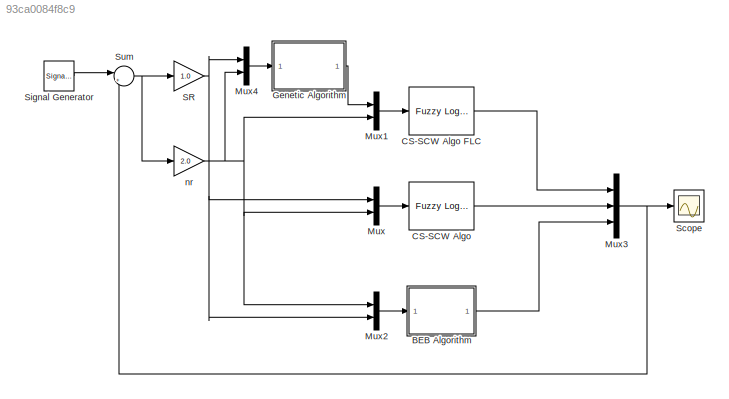
MODEL slx_93ca0084f8c9
KIND model
CONFIG AbsTol = auto
CONFIG FixedStep = auto
CONFIG MaxStep = auto
CONFIG MinStep = auto
CONFIG RelTol = 1e-3
CONFIG SampleTimeConstraint = Unconstrained
CONFIG Solver = ode45
CONFIG SolverMode = SingleTasking
CONFIG SolverName = ode45
CONFIG StartTime = 0.0
CONFIG StopTime = 10.0
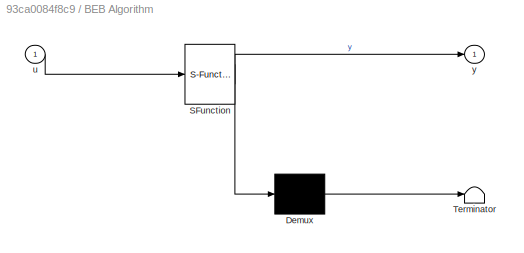
BLOCK [SubSystem] BEB Algorithm
  ErrorFcn = Stateflow.Translate.translate
  PermitHierarchicalResolution = ExplicitOnly
  Ports = [1, 1]
  RequestExecContextInheritance = off
  SFBlockType = MATLAB Function
  TreatAsAtomicUnit = on
BLOCK [Demux] BEB Algorithm/ Demux 
  Outputs = 1
  Ports = [1, 1]
BLOCK [S-Function] BEB Algorithm/ SFunction 
  EnableBusSupport = on
  FunctionName = sf_sfun
  PortCounts = [1 2]
  Ports = [1, 2]
  Tag = Stateflow S-Function FGA1 1
BLOCK [Terminator] BEB Algorithm/ Terminator 
BLOCK [Inport] BEB Algorithm/u
  IconDisplay = Port number
BLOCK [Outport] BEB Algorithm/y
  IconDisplay = Port number
BLOCK [Reference] CS-SCW Algo  REF=fuzblock/Fuzzy Logic   (lib defined in mdl_858b3b3e7478)
Controller
  Ports = [1, 1]
  SourceBlock = fuzblock/Fuzzy Logic \nController
  SourceType = FIS
  fis = [CW_ALgo.fis]
BLOCK [Reference] CS-SCW Algo FLC  REF=fuzblock/Fuzzy Logic   (lib defined in mdl_858b3b3e7478)
Controller
  Ports = [1, 1]
  SourceBlock = fuzblock/Fuzzy Logic \nController
  SourceType = FIS
  fis = [CW_ALgo.fis]
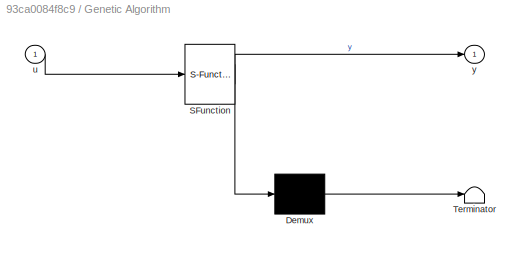
BLOCK [SubSystem] Genetic Algorithm
  ErrorFcn = Stateflow.Translate.translate
  PermitHierarchicalResolution = ExplicitOnly
  Ports = [1, 1]
  RequestExecContextInheritance = off
  SFBlockType = MATLAB Function
  TreatAsAtomicUnit = on
BLOCK [Demux] Genetic Algorithm/ Demux 
  Outputs = 1
  Ports = [1, 1]
BLOCK [S-Function] Genetic Algorithm/ SFunction 
  EnableBusSupport = on
  FunctionName = sf_sfun
  PortCounts = [1 2]
  Ports = [1, 2]
  Tag = Stateflow S-Function FGA1 2
BLOCK [Terminator] Genetic Algorithm/ Terminator 
BLOCK [Inport] Genetic Algorithm/u
  IconDisplay = Port number
BLOCK [Outport] Genetic Algorithm/y
  IconDisplay = Port number
BLOCK [Mux] Mux
  DisplayOption = bar
  Inputs = 2
  Ports = [2, 1]
BLOCK [Mux] Mux1
  DisplayOption = bar
  Inputs = 2
  Ports = [2, 1]
BLOCK [Mux] Mux2
  DisplayOption = bar
  Inputs = 2
  Ports = [2, 1]
BLOCK [Mux] Mux3
  DisplayOption = bar
  Inputs = 3
  Ports = [3, 1]
BLOCK [Mux] Mux4
  DisplayOption = bar
  Inputs = 2
  Ports = [2, 1]
BLOCK [Gain] SR
  Gain = 1.0
  OutDataTypeStr = Inherit: Inherit via internal rule
  OutMax = [1]
  OutMin = [0]
  ParamDataTypeStr = Inherit: Inherit via internal rule
  ParamMax = [1]
  ParamMin = [0]
  SaturateOnIntegerOverflow = off
BLOCK [Scope] Scope
  Floating = off
  NumInputPorts = 1
  Ports = [1]
BLOCK [SignalGenerator] Signal Generator
  Ports = [0, 1]
  Units = rad/sec
  VectorParams1D = off
  WaveForm = random
BLOCK [Sum] Sum
  IconShape = round
  InputSameDT = off
  Inputs = |++
  OutDataTypeStr = Inherit: Inherit via internal rule
  Ports = [2, 1]
  SaturateOnIntegerOverflow = off
BLOCK [Gain] nr
  Gain = 2.0
  OutDataTypeStr = Inherit: Inherit via internal rule
  OutMax = [6]
  OutMin = [1]
  ParamDataTypeStr = Inherit: Inherit via internal rule
  ParamMax = [6]
  ParamMin = [1]
  SaturateOnIntegerOverflow = off
LINE BEB Algorithm:1 -> Mux3:3
LINE CS-SCW Algo FLC:1 -> Mux3:1
LINE CS-SCW Algo:1 -> Mux3:2
LINE Genetic Algorithm:1 -> Mux1:1
LINE Mux1:1 -> CS-SCW Algo FLC:1
LINE Mux2:1 -> BEB Algorithm:1
NET Mux3:1 -> Scope:1, Sum:2
LINE Mux4:1 -> Genetic Algorithm:1
LINE Mux:1 -> CS-SCW Algo:1
NET SR:1 -> Mux2:2, Mux4:1, Mux:1
LINE Signal Generator:1 -> Sum:1
NET Sum:1 -> SR:1, nr:1
NET nr:1 -> Mux1:2, Mux2:1, Mux4:2, Mux:2
note: NET lines group one-source signal fan-out (src -> all destinations, sorted); 1:1 wires keep LINE
CHART BEB Algorithm states=1 transitions=1
  STATE_LABEL 'eML_blk_kernel()'
  STATE_LABEL 'SCRIPT:\nfunction y = fcn(u)\n%#codegen\n\ny = u;'
CHART Genetic Algorithm states=1 transitions=1
  STATE_LABEL 'eML_blk_kernel()'
  STATE_LABEL 'SCRIPT:\nfunction y = fcn(u)\n%#codegen\n\ny = u;'
